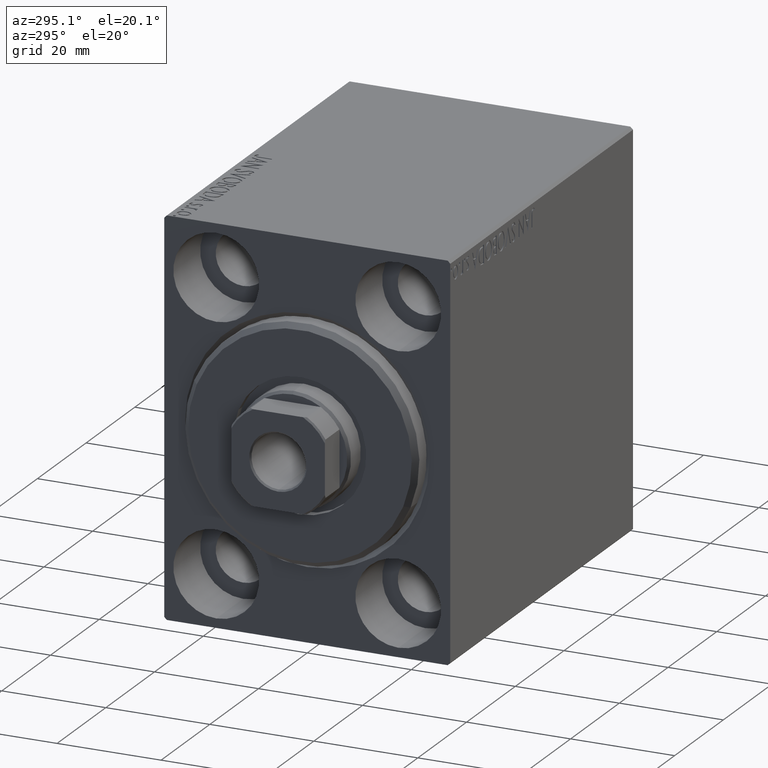
[diagram: clean part render]
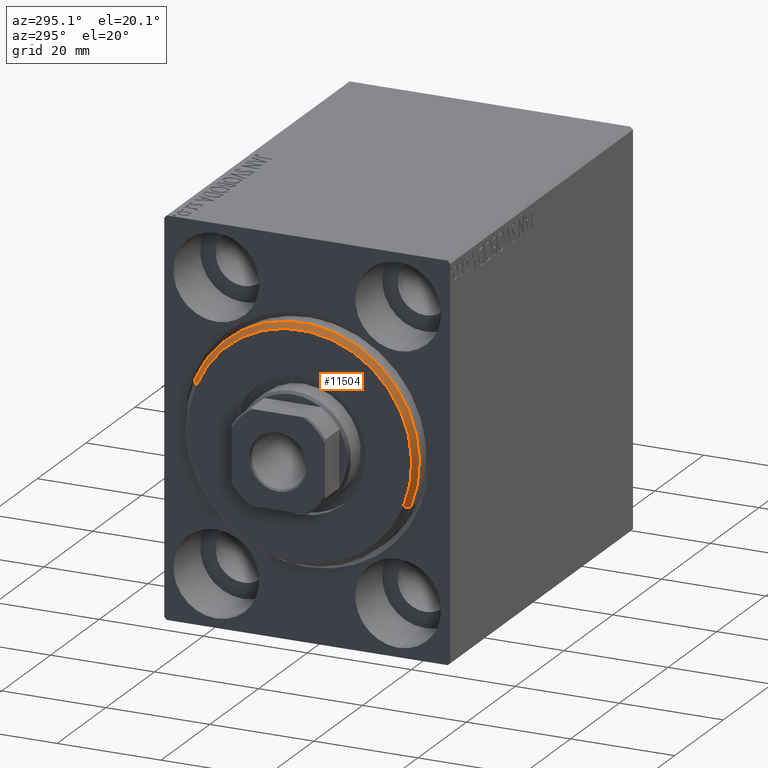
[diagram: same view with one face highlighted and labeled with its STEP entity id]
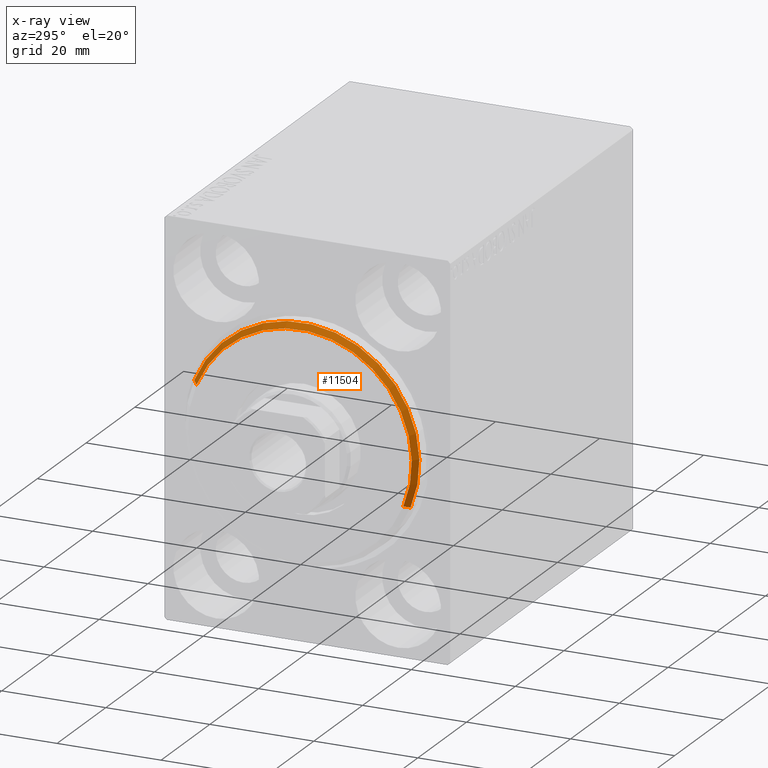
[diagram: x-ray of the same camera — body ghosted, the highlighted face saturated]
A machine part, auxiliary view. The second image highlights one B-rep face of the part: STEP entity #11504.
The next image is the same camera in x-ray: the body ghosted, the highlighted face saturated — about 0% of this face is hidden behind the body in this view.
In plain terms, the highlighted conical surface has half-angle 45 deg.
Its self-contained STEP definition (entity closure, byte-faithful):
#3649 = DIRECTION ( 'NONE',  ( 0.000000000000000000, 0.000000000000000000, -1.000000000000000000 ) ) ;
#4176 = VERTEX_POINT ( 'NONE', #4635 ) ;
#4635 = CARTESIAN_POINT ( 'NONE',  ( 3.000000000000000000, 0.000000000000000000, 21.50000000000000355 ) ) ;
#5724 = DIRECTION ( 'NONE',  ( -0.7071067811865487940, 0.000000000000000000, 0.7071067811865463515 ) ) ;
#6548 = FACE_OUTER_BOUND ( 'NONE', #42424, .T. ) ;
#7305 = LINE ( 'NONE', #10172, #22446 ) ;
#7955 = VERTEX_POINT ( 'NONE', #28765 ) ;
#8211 = CIRCLE ( 'NONE', #18767, 21.50000000000000355 ) ;
#9035 = LINE ( 'NONE', #22471, #27846 ) ;
#9438 = AXIS2_PLACEMENT_3D ( 'NONE', #34134, #40529, #17173 ) ;
#10172 = CARTESIAN_POINT ( 'NONE',  ( 3.000000000000000000, 2.632990618166810024E-15, -21.50000000000000355 ) ) ;
#10620 = EDGE_CURVE ( 'NONE', #4176, #37765, #9035, .T. ) ;
#11055 = VERTEX_POINT ( 'NONE', #29197 ) ;
#11504 = ADVANCED_FACE ( 'NONE', ( #6548 ), #15187, .T. ) ;
#13596 = DIRECTION ( 'NONE',  ( -1.000000000000000000, 0.000000000000000000, 0.000000000000000000 ) ) ;
#14596 = EDGE_CURVE ( 'NONE', #4176, #7955, #8211, .T. ) ;
#14703 = ORIENTED_EDGE ( 'NONE', *, *, #14596, .F. ) ;
#15187 = CONICAL_SURFACE ( 'NONE', #30676, 21.50000000000000355, 0.7853981633974466137 ) ;
#16900 = DIRECTION ( 'NONE',  ( 0.000000000000000000, 0.000000000000000000, 1.000000000000000000 ) ) ;
#17173 = DIRECTION ( 'NONE',  ( 0.000000000000000000, 0.000000000000000000, -1.000000000000000000 ) ) ;
#17563 = ORIENTED_EDGE ( 'NONE', *, *, #10620, .T. ) ;
#18767 = AXIS2_PLACEMENT_3D ( 'NONE', #23066, #36713, #3649 ) ;
#22446 = VECTOR ( 'NONE', #37044, 1000.000000000000000 ) ;
#22471 = CARTESIAN_POINT ( 'NONE',  ( 3.000000000000000000, 0.000000000000000000, 21.50000000000000355 ) ) ;
#23066 = CARTESIAN_POINT ( 'NONE',  ( 3.000000000000000000, 0.000000000000000000, 0.000000000000000000 ) ) ;
#24687 = EDGE_CURVE ( 'NONE', #7955, #11055, #7305, .T. ) ;
#24762 = ORIENTED_EDGE ( 'NONE', *, *, #41633, .F. ) ;
#24903 = CIRCLE ( 'NONE', #9438, 22.50000000000000355 ) ;
#27846 = VECTOR ( 'NONE', #5724, 1000.000000000000000 ) ;
#28765 = CARTESIAN_POINT ( 'NONE',  ( 3.000000000000000000, 2.694222958124177598E-15, -21.50000000000000355 ) ) ;
#29197 = CARTESIAN_POINT ( 'NONE',  ( 1.999999999999999112, 2.755455298081545172E-15, -22.50000000000000355 ) ) ;
#30348 = CARTESIAN_POINT ( 'NONE',  ( 3.000000000000000000, 0.000000000000000000, 0.000000000000000000 ) ) ;
#30676 = AXIS2_PLACEMENT_3D ( 'NONE', #30348, #13596, #16900 ) ;
#34001 = CARTESIAN_POINT ( 'NONE',  ( 1.999999999999999112, 0.000000000000000000, 22.50000000000000355 ) ) ;
#34134 = CARTESIAN_POINT ( 'NONE',  ( 1.999999999999999112, 0.000000000000000000, 0.000000000000000000 ) ) ;
#36713 = DIRECTION ( 'NONE',  ( 1.000000000000000000, -0.000000000000000000, 0.000000000000000000 ) ) ;
#37044 = DIRECTION ( 'NONE',  ( -0.7071067811865487940, 8.659560562354919300E-17, -0.7071067811865463515 ) ) ;
#37765 = VERTEX_POINT ( 'NONE', #34001 ) ;
#38357 = ORIENTED_EDGE ( 'NONE', *, *, #24687, .F. ) ;
#40529 = DIRECTION ( 'NONE',  ( -1.000000000000000000, 0.000000000000000000, 0.000000000000000000 ) ) ;
#41633 = EDGE_CURVE ( 'NONE', #11055, #37765, #24903, .T. ) ;
#42424 = EDGE_LOOP ( 'NONE', ( #38357, #14703, #17563, #24762 ) ) ;